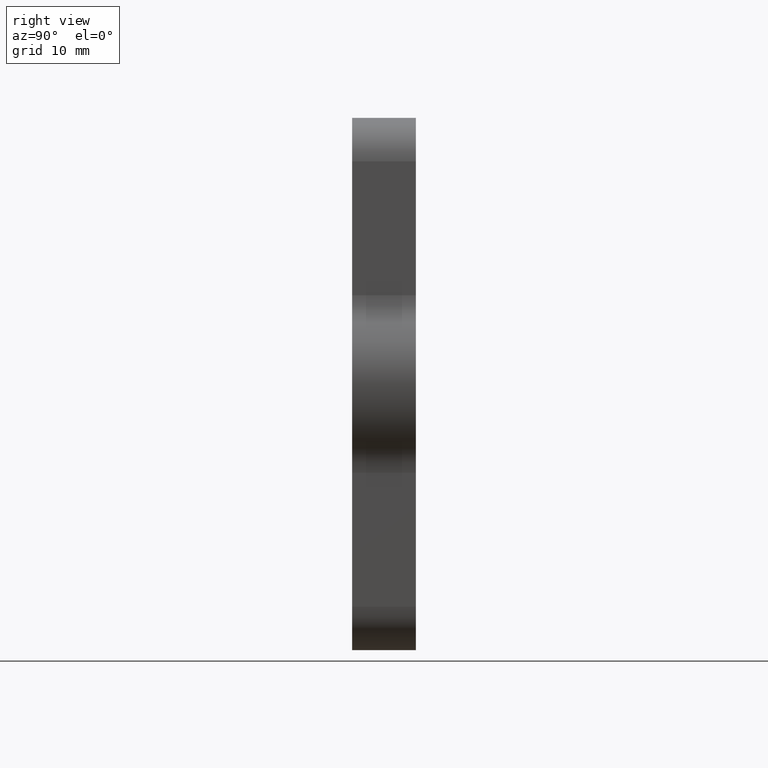
[diagram: clean part render]
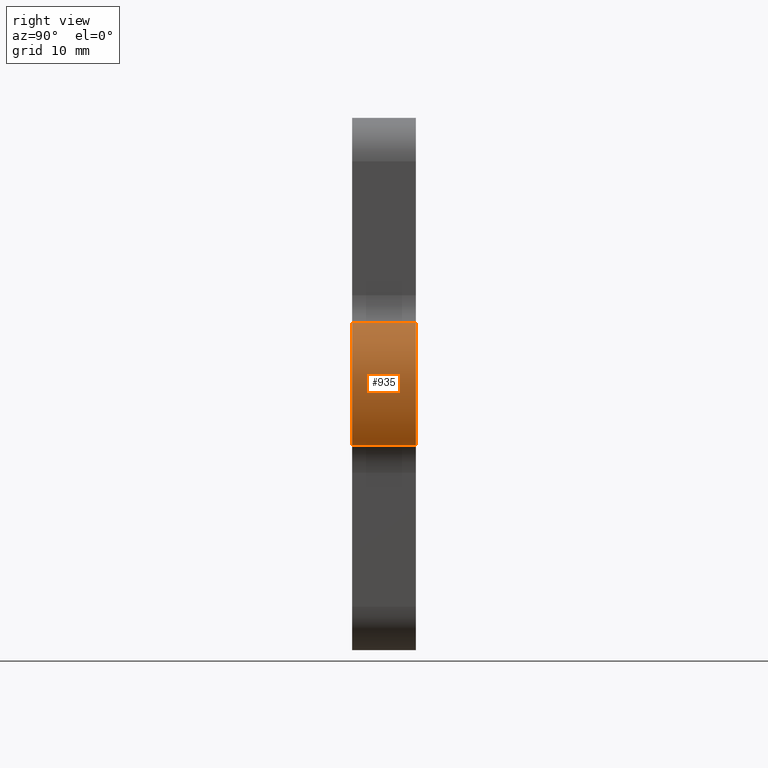
[diagram: same view with one face highlighted and labeled with its STEP entity id]
A machine part, right view. The second image highlights one B-rep face of the part: STEP entity #935.
In plain terms, the highlighted cylindrical surface (partial cylindrical patch) has radius 14.2875 mm, axis along (0, 1, 0).
Its self-contained STEP definition (entity closure, byte-faithful):
#76 = EDGE_LOOP ( 'NONE', ( #575, #1072, #491, #535 ) ) ;
#120 = DIRECTION ( 'NONE',  ( 0.0000000000000000000, -1.000000000000000000, 0.0000000000000000000 ) ) ;
#138 = EDGE_CURVE ( 'NONE', #1022, #1015, #2110, .T. ) ;
#171 = CARTESIAN_POINT ( 'NONE',  ( 2.125000000000000000, 0.0000000000000000000, -1.562500000000000000 ) ) ;
#177 = CARTESIAN_POINT ( 'NONE',  ( 2.558486238532109436, 0.3750000000000000555, -1.920963291012180107 ) ) ;
#239 = CIRCLE ( 'NONE', #522, 0.5625000000000001110 ) ;
#411 = DIRECTION ( 'NONE',  ( 0.0000000000000000000, 0.0000000000000000000, 1.000000000000000000 ) ) ;
#491 = ORIENTED_EDGE ( 'NONE', *, *, #843, .T. ) ;
#522 = AXIS2_PLACEMENT_3D ( 'NONE', #1576, #886, #1759 ) ;
#535 = ORIENTED_EDGE ( 'NONE', *, *, #138, .T. ) ;
#542 = DIRECTION ( 'NONE',  ( 0.0000000000000000000, 0.0000000000000000000, -1.000000000000000000 ) ) ;
#575 = ORIENTED_EDGE ( 'NONE', *, *, #2079, .T. ) ;
#648 = EDGE_CURVE ( 'NONE', #923, #1820, #973, .T. ) ;
#753 = VECTOR ( 'NONE', #793, 39.37007874015748143 ) ;
#793 = DIRECTION ( 'NONE',  ( 0.0000000000000000000, 1.000000000000000000, 0.0000000000000000000 ) ) ;
#835 = DIRECTION ( 'NONE',  ( -0.0000000000000000000, -1.000000000000000000, -0.0000000000000000000 ) ) ;
#843 = EDGE_CURVE ( 'NONE', #1820, #1022, #1841, .T. ) ;
#886 = DIRECTION ( 'NONE',  ( -0.0000000000000000000, 1.000000000000000000, -0.0000000000000000000 ) ) ;
#899 = AXIS2_PLACEMENT_3D ( 'NONE', #1853, #120, #542 ) ;
#906 = VECTOR ( 'NONE', #835, 39.37007874015748143 ) ;
#923 = VERTEX_POINT ( 'NONE', #1890 ) ;
#935 = ADVANCED_FACE ( 'NONE', ( #1450 ), #1892, .T. ) ;
#973 = LINE ( 'NONE', #1145, #753 ) ;
#1015 = VERTEX_POINT ( 'NONE', #1414 ) ;
#1022 = VERTEX_POINT ( 'NONE', #1869 ) ;
#1055 = CARTESIAN_POINT ( 'NONE',  ( 2.558486238532109436, 0.0000000000000000000, -1.204036708987819893 ) ) ;
#1072 = ORIENTED_EDGE ( 'NONE', *, *, #648, .T. ) ;
#1145 = CARTESIAN_POINT ( 'NONE',  ( 2.558486238532109436, 0.0000000000000000000, -1.920963291012180107 ) ) ;
#1414 = CARTESIAN_POINT ( 'NONE',  ( 2.558486238532109436, 0.0000000000000000000, -1.204036708987819893 ) ) ;
#1450 = FACE_OUTER_BOUND ( 'NONE', #76, .T. ) ;
#1576 = CARTESIAN_POINT ( 'NONE',  ( 2.125000000000000000, 0.0000000000000000000, -1.562500000000000000 ) ) ;
#1759 = DIRECTION ( 'NONE',  ( 0.0000000000000000000, 0.0000000000000000000, -1.000000000000000000 ) ) ;
#1820 = VERTEX_POINT ( 'NONE', #177 ) ;
#1841 = CIRCLE ( 'NONE', #899, 0.5625000000000001110 ) ;
#1853 = CARTESIAN_POINT ( 'NONE',  ( 2.125000000000000000, 0.3750000000000000555, -1.562500000000000000 ) ) ;
#1869 = CARTESIAN_POINT ( 'NONE',  ( 2.558486238532109436, 0.3750000000000000555, -1.204036708987819893 ) ) ;
#1890 = CARTESIAN_POINT ( 'NONE',  ( 2.558486238532109436, 0.0000000000000000000, -1.920963291012180107 ) ) ;
#1892 = CYLINDRICAL_SURFACE ( 'NONE', #2035, 0.5625000000000001110 ) ;
#2035 = AXIS2_PLACEMENT_3D ( 'NONE', #171, #2157, #411 ) ;
#2079 = EDGE_CURVE ( 'NONE', #1015, #923, #239, .T. ) ;
#2110 = LINE ( 'NONE', #1055, #906 ) ;
#2157 = DIRECTION ( 'NONE',  ( 0.0000000000000000000, 1.000000000000000000, 0.0000000000000000000 ) ) ;